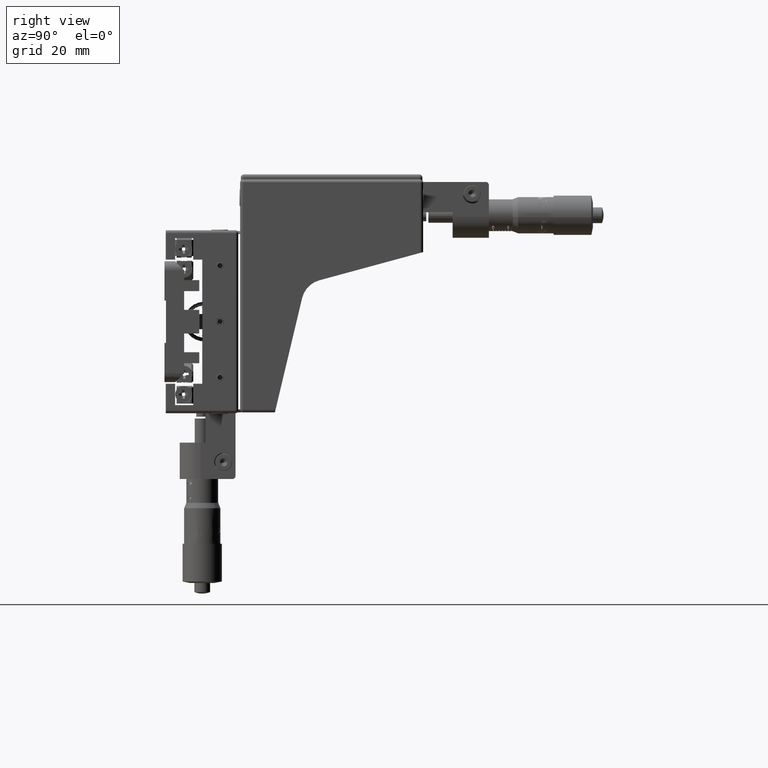
[diagram: clean part render]
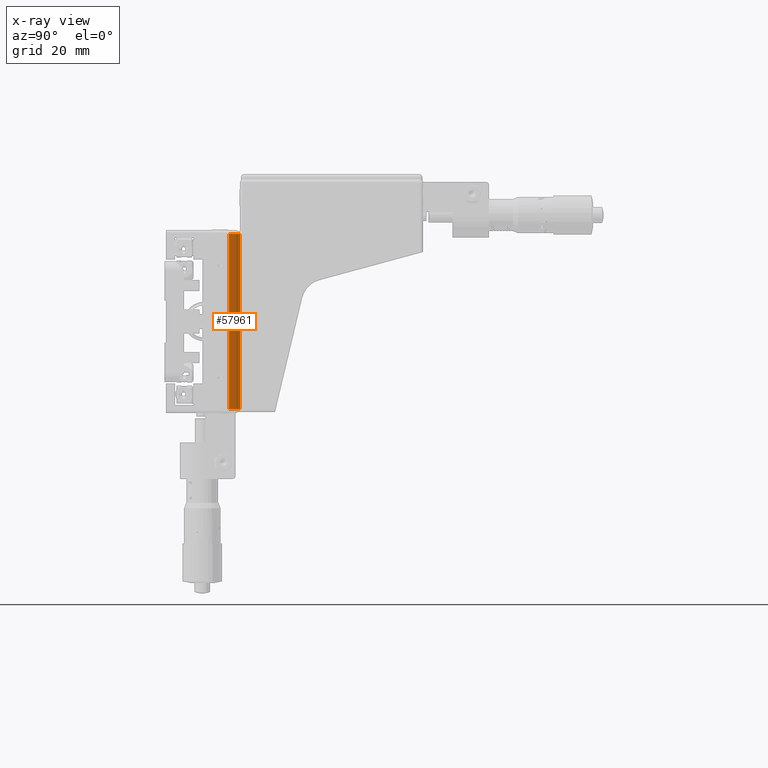
[diagram: x-ray — body ghosted, one internal face saturated and labeled with its STEP entity id]
A machine part, right view, then the same camera in x-ray: the body is ghosted and one INTERNAL B-rep face — a face not visible from any outside direction — is saturated and labeled: STEP entity #57961.
In plain terms, the highlighted planar face has unit normal (-1, -0, 0).
Its self-contained STEP definition (entity closure, byte-faithful):
#1059 = DIRECTION ( 'NONE',  ( 1.203642572248329100E-014, -1.000000000000000000, 2.374402757730714900E-017 ) ) ;
#1753 = CARTESIAN_POINT ( 'NONE',  ( -20.00000000000031600, 21.09999999999989500, -28.99999999999808900 ) ) ;
#4325 = EDGE_CURVE ( 'NONE', #14636, #62194, #5784, .T. ) ;
#4905 = ORIENTED_EDGE ( 'NONE', *, *, #4325, .T. ) ;
#5784 = LINE ( 'NONE', #89178, #40264 ) ;
#8279 = EDGE_LOOP ( 'NONE', ( #66283, #22849, #4905, #17557 ) ) ;
#12385 = PLANE ( 'NONE',  #38011 ) ;
#14636 = VERTEX_POINT ( 'NONE', #27790 ) ;
#17062 = VECTOR ( 'NONE', #1059, 1000.000000000000000 ) ;
#17557 = ORIENTED_EDGE ( 'NONE', *, *, #77995, .T. ) ;
#22849 = ORIENTED_EDGE ( 'NONE', *, *, #76289, .T. ) ;
#27099 = CARTESIAN_POINT ( 'NONE',  ( -19.99999999999970200, 21.09999999999989500, 29.00000000000191100 ) ) ;
#27790 = CARTESIAN_POINT ( 'NONE',  ( -19.99999999999974800, 24.79999999999991200, 29.00000000000191100 ) ) ;
#33548 = DIRECTION ( 'NONE',  ( -1.058181320345852200E-014, -3.944304526105059000E-031, -1.000000000000000000 ) ) ;
#34204 = DIRECTION ( 'NONE',  ( -1.058181320345852200E-014, -3.944304526105059000E-031, -1.000000000000000000 ) ) ;
#35462 = CARTESIAN_POINT ( 'NONE',  ( -20.00000000000031600, 21.09999999999989500, -28.99999999999808900 ) ) ;
#36369 = DIRECTION ( 'NONE',  ( -1.203642572248329100E-014, 1.000000000000000000, -2.374402757730714900E-017 ) ) ;
#36448 = FACE_OUTER_BOUND ( 'NONE', #8279, .T. ) ;
#38011 = AXIS2_PLACEMENT_3D ( 'NONE', #40055, #88464, #47029 ) ;
#40055 = CARTESIAN_POINT ( 'NONE',  ( -19.99999999999969100, 21.09999999999989500, 30.00000000000191100 ) ) ;
#40264 = VECTOR ( 'NONE', #34204, 1000.000000000000000 ) ;
#41298 = EDGE_CURVE ( 'NONE', #61529, #85288, #62057, .T. ) ;
#43606 = VECTOR ( 'NONE', #33548, 1000.000000000000000 ) ;
#47029 = DIRECTION ( 'NONE',  ( -1.203642572248329300E-014, 1.000000000000000000, -2.374402757730715200E-017 ) ) ;
#51218 = CARTESIAN_POINT ( 'NONE',  ( -20.00000000000036200, 24.79999999999991200, -28.99999999999808900 ) ) ;
#53762 = LINE ( 'NONE', #35462, #17062 ) ;
#56685 = LINE ( 'NONE', #77753, #72984 ) ;
#57961 = ADVANCED_FACE ( 'NONE', ( #36448 ), #12385, .T. ) ;
#61082 = CARTESIAN_POINT ( 'NONE',  ( -19.99999999999969100, 21.09999999999989500, 30.00000000000191100 ) ) ;
#61529 = VERTEX_POINT ( 'NONE', #27099 ) ;
#62057 = LINE ( 'NONE', #61082, #43606 ) ;
#62194 = VERTEX_POINT ( 'NONE', #51218 ) ;
#66283 = ORIENTED_EDGE ( 'NONE', *, *, #41298, .F. ) ;
#72984 = VECTOR ( 'NONE', #36369, 1000.000000000000000 ) ;
#76289 = EDGE_CURVE ( 'NONE', #61529, #14636, #56685, .T. ) ;
#77753 = CARTESIAN_POINT ( 'NONE',  ( -19.99999999999974800, 24.79999999999990800, 29.00000000000191100 ) ) ;
#77995 = EDGE_CURVE ( 'NONE', #62194, #85288, #53762, .T. ) ;
#85288 = VERTEX_POINT ( 'NONE', #1753 ) ;
#88464 = DIRECTION ( 'NONE',  ( -1.000000000000000000, -1.203642572248329300E-014, 1.058181320345853300E-014 ) ) ;
#89178 = CARTESIAN_POINT ( 'NONE',  ( -19.99999999999973700, 24.79999999999991200, 30.00000000000191100 ) ) ;